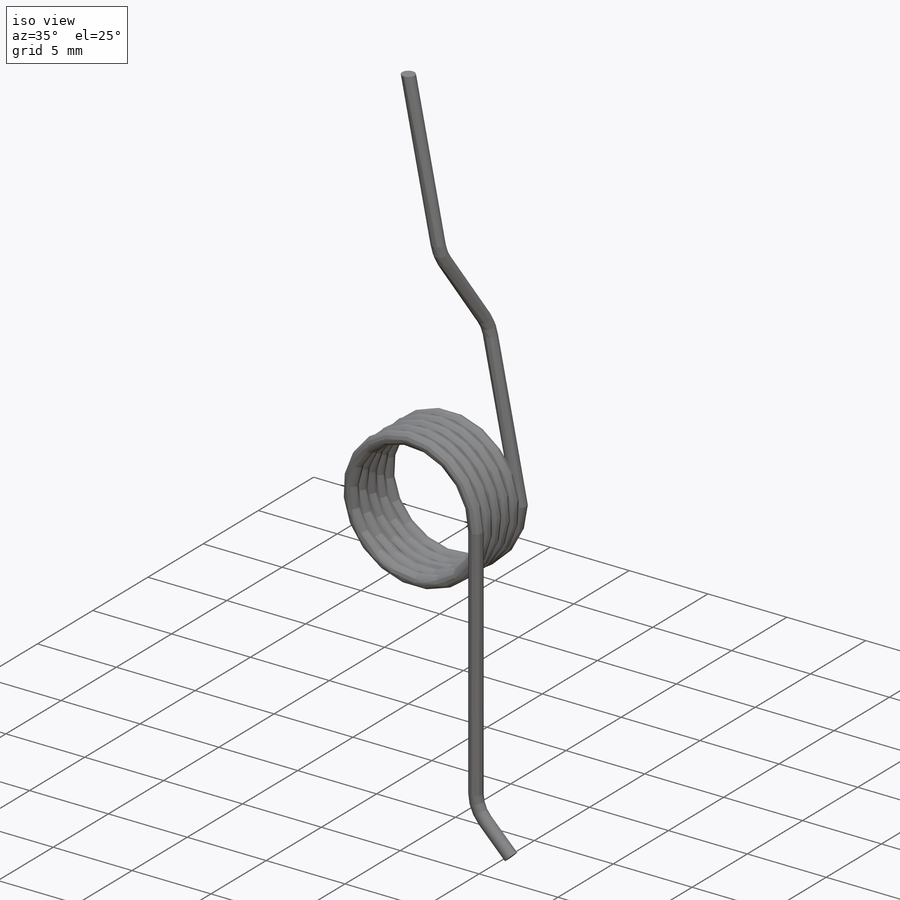
[diagram: iso view]
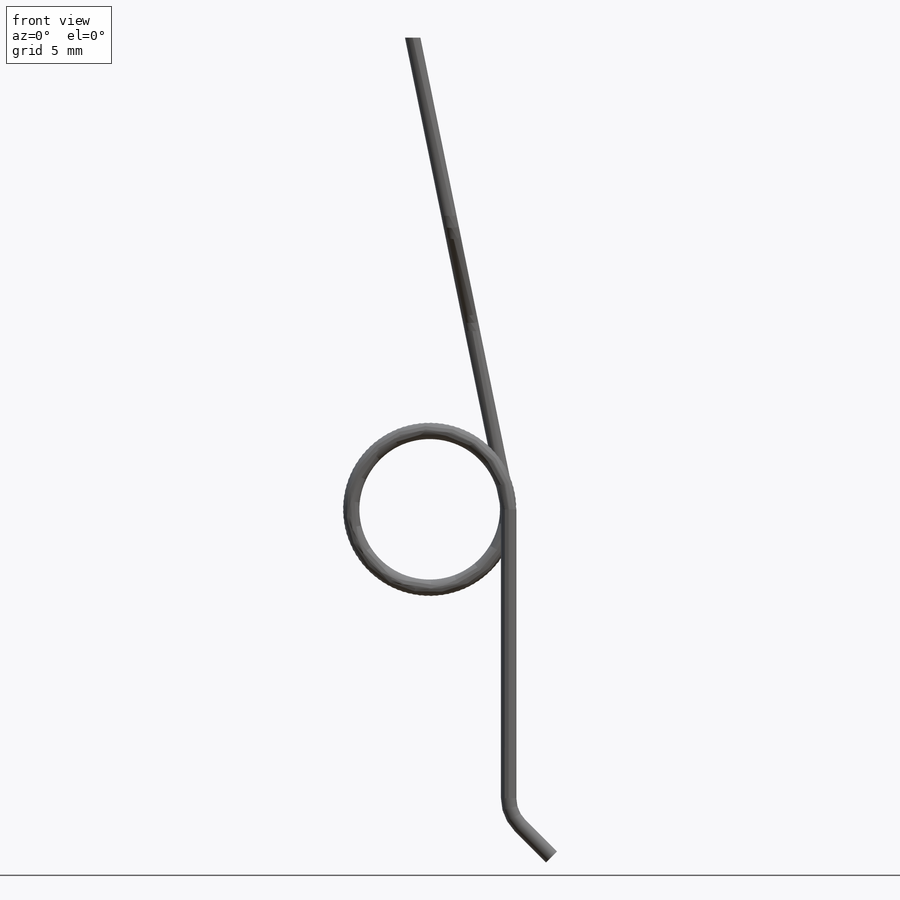
[diagram: front view]
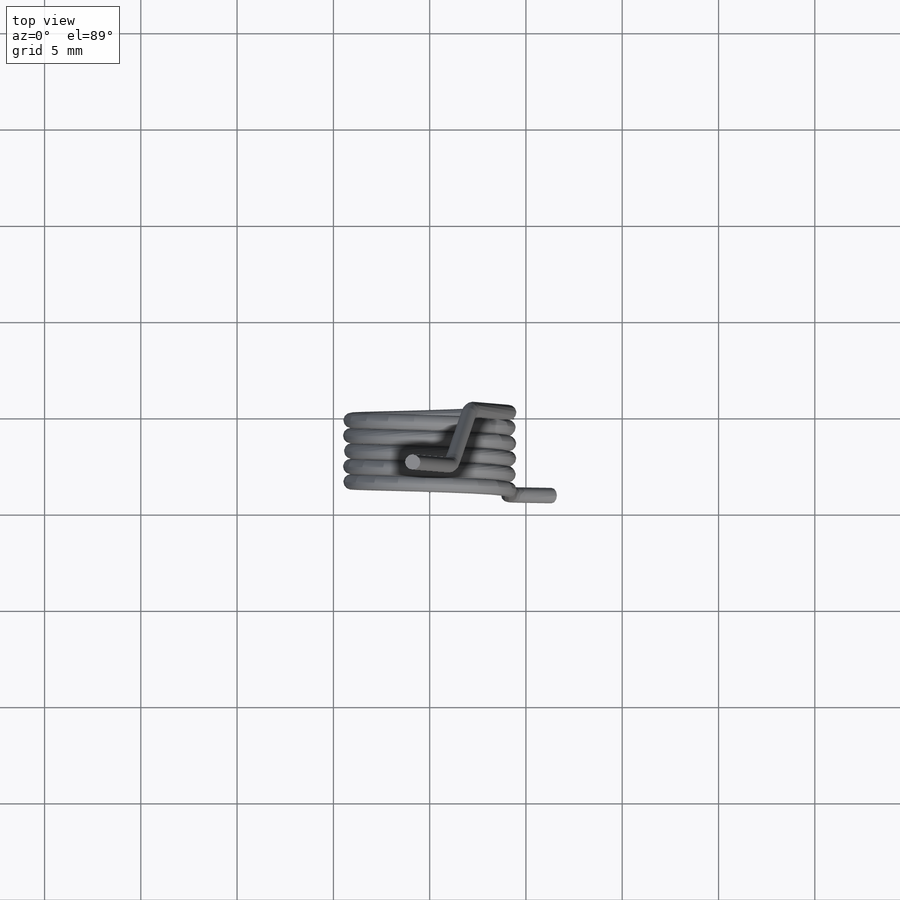
[diagram: top view]
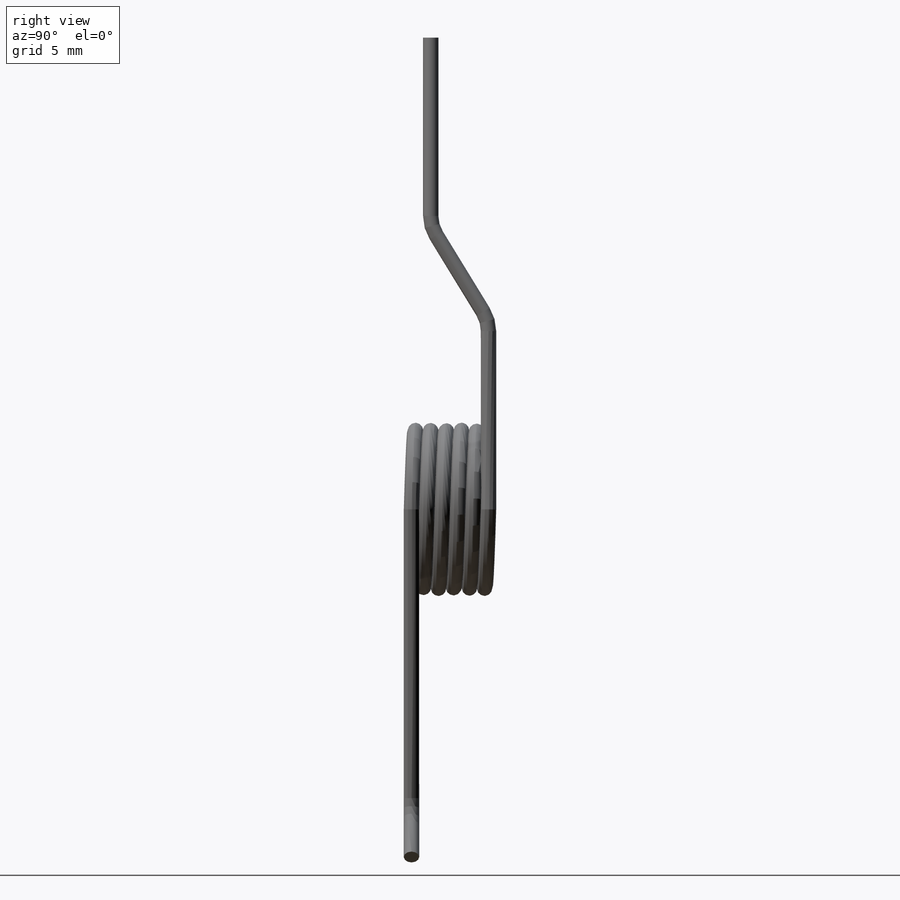
[diagram: right view]
SOLIDWORKS PART (.sldprt)
format: sldprt  version: not decoded by parser v0  size: 368,128 bytes
history: native  units: mm
features: plane x8, sketch x7, sweep x3, material x1, helix x1 (+12 scaffold rows collapsed)
feature tree (32):
  scaffold x12  (default folders/planes/origin — collapsed)
  material  "Matériau <non spécifié>"
  plane  "Face"
  plane  "Dessus"
  plane  "Droite"
  sketch  "Esquisse1"  dims[D1=8.2mm]
  helix  "Hélice/Spirale1"  Pitch=4mm
  sketch  "Esquisse2"  dims[D1=0.8mm D2=4.1mm D3=~1.859945mm]
  plane  "Plan1"  Offset=4.1mm
  sweep  "Balayage3"
  sketch  "Esquisse6"  dims[D1=0.8mm]
  plane  "Plan3"
  sketch  "Esquisse3"  dims[c1.D4=2.0mm c1.D2=2.0mm c1.D6=2.0mm c1.D1=12.0mm c2.D2=~2.461232mm c3.D2=135.0deg c3.D3=2.0mm c3.D1=~3.036529mm c4.D1=135.0deg c4.D5=~3.582088mm c4.D2=4.0mm c4.D3=~11.51289mm c4.D4=~3.745894mm c5.D4=135.0deg c5.D5=11.51mm c5.D2=15.0mm c5.D3=~2.319262mm c6.D3=135.0deg c6.D7=11.51mm]
  plane  "Plan2"  Offset=4.1mm
  sweep  "Balayage7"
  plane  "Plan4"  Offset=4.1mm
  sketch  "Esquisse10"
  plane  "Plan5"
  sketch  "Esquisse8"  dims[D1=0.8mm]
  sketch  "Esquisse7"  dims[D5=2.0mm D1=10.0mm D2=10.0mm D3=5.0mm D4=3.0mm]
  sweep  "Balayage14"
decode coverage: 7 of 11 modeling features carry decoded parameters
note: ~ marks probable driven/reference dimensions
note: suppression state not decoded; provenance and decode notes live in map.json
